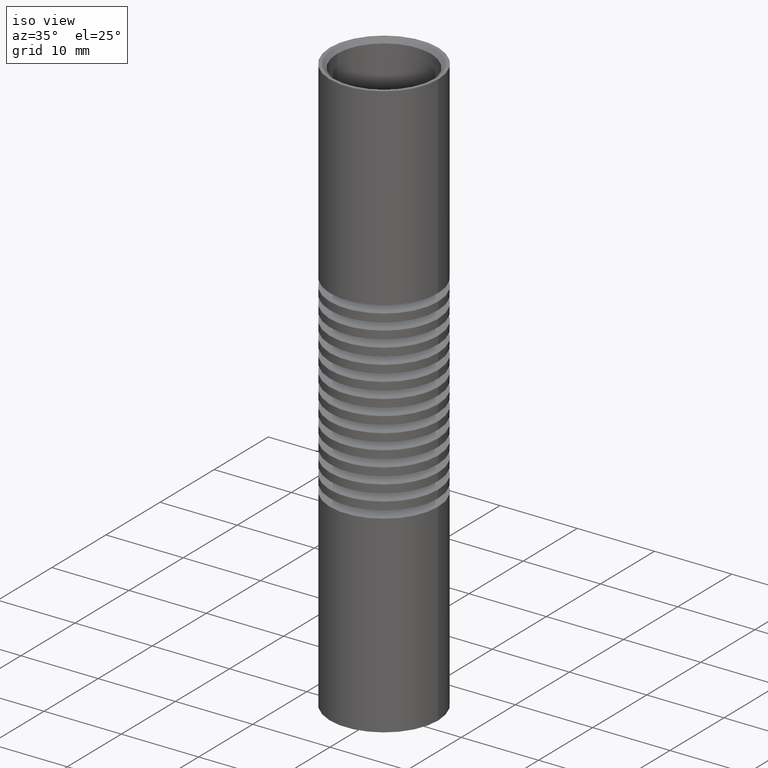
[diagram: clean part render]
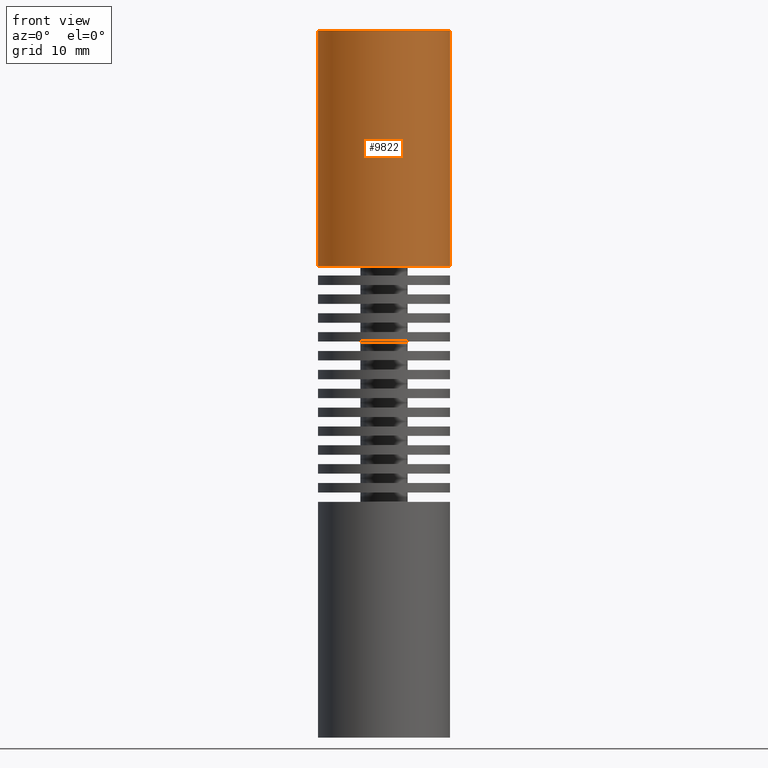
[diagram: tour spotlight — one face highlighted and labeled with its STEP entity id]
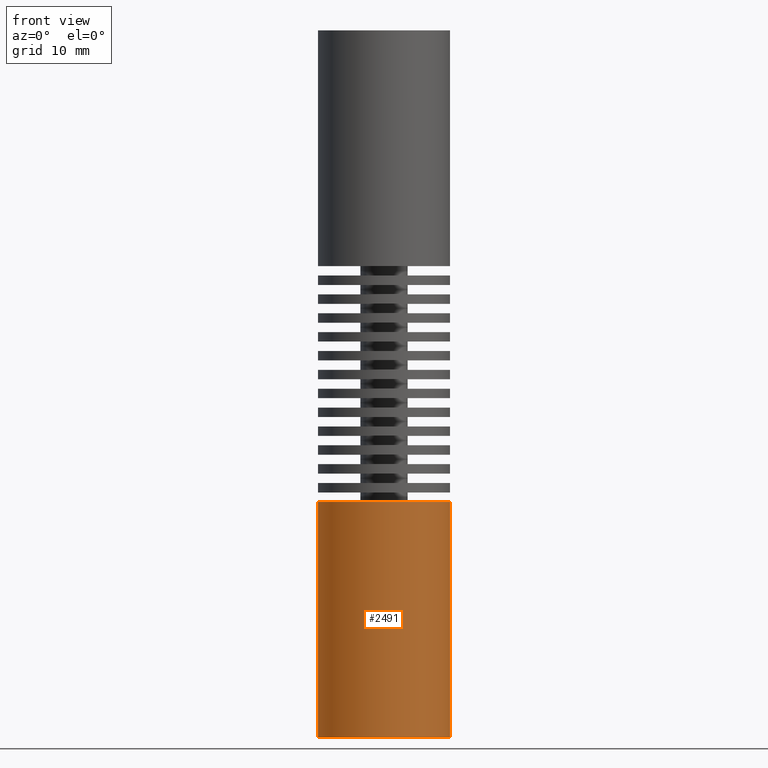
[diagram: tour spotlight — one face highlighted and labeled with its STEP entity id]
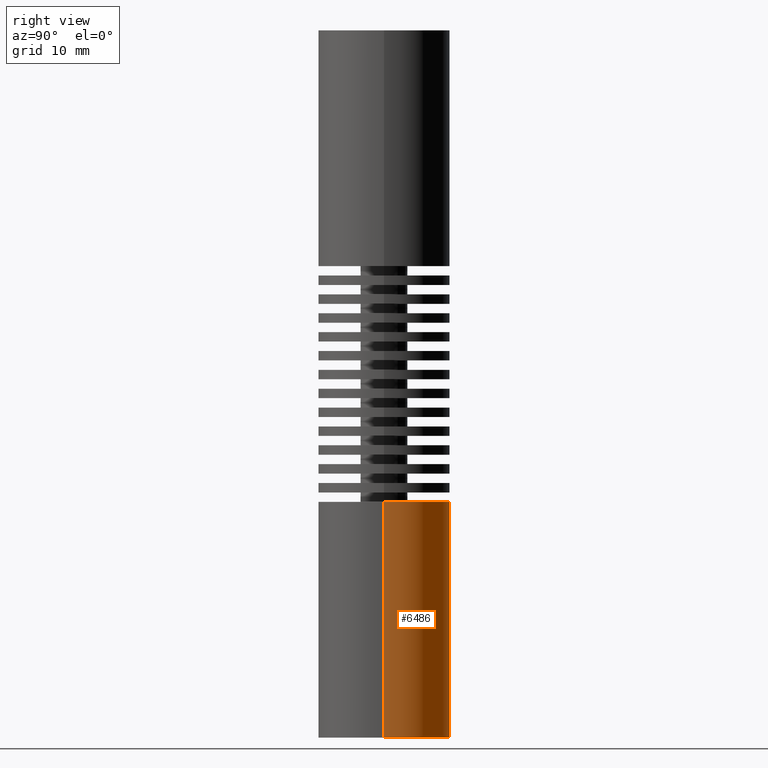
[diagram: tour spotlight — one face highlighted and labeled with its STEP entity id]
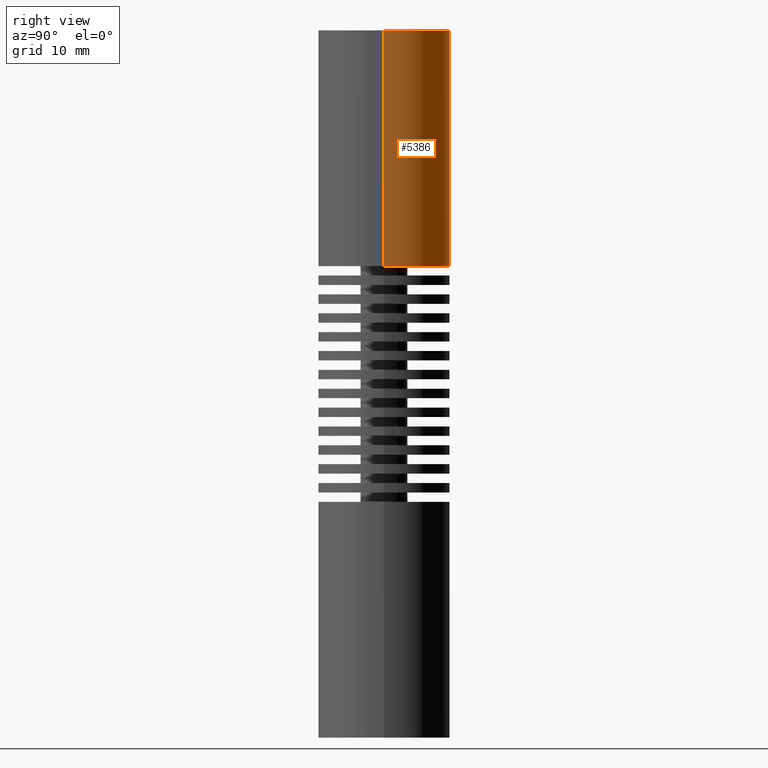
[diagram: tour spotlight — one face highlighted and labeled with its STEP entity id]
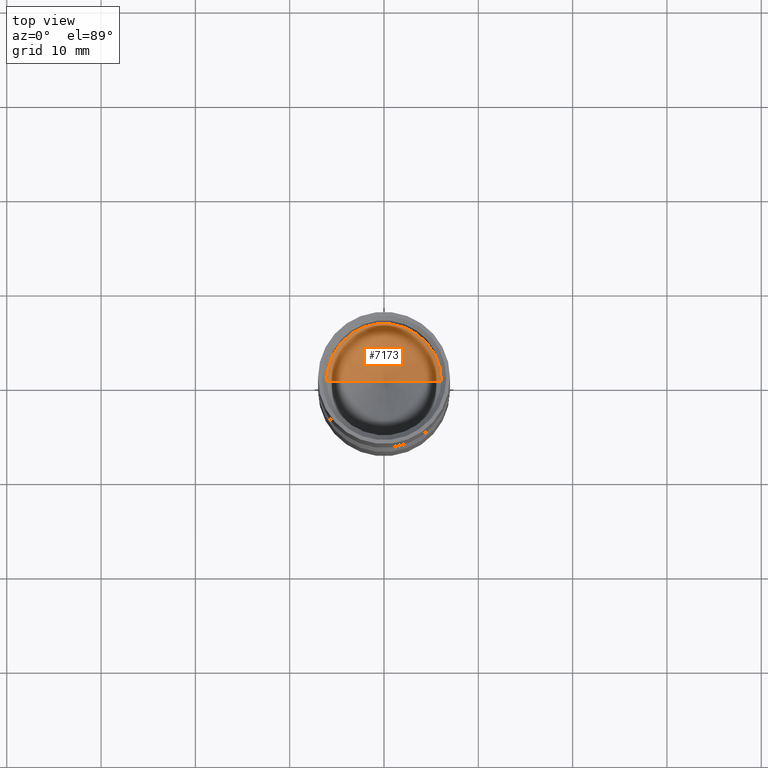
[diagram: tour spotlight — one face highlighted and labeled with its STEP entity id]
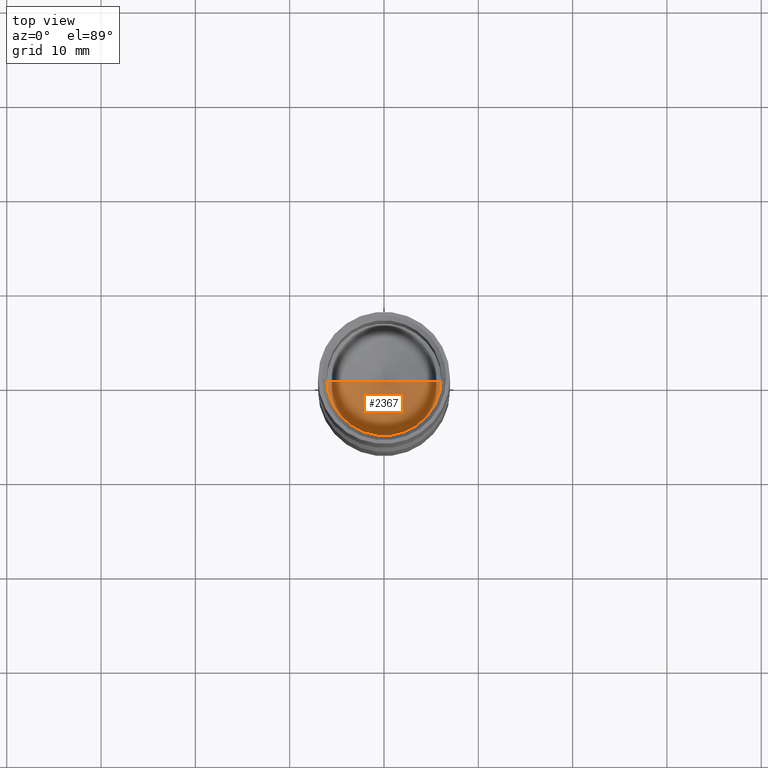
[diagram: tour spotlight — one face highlighted and labeled with its STEP entity id]
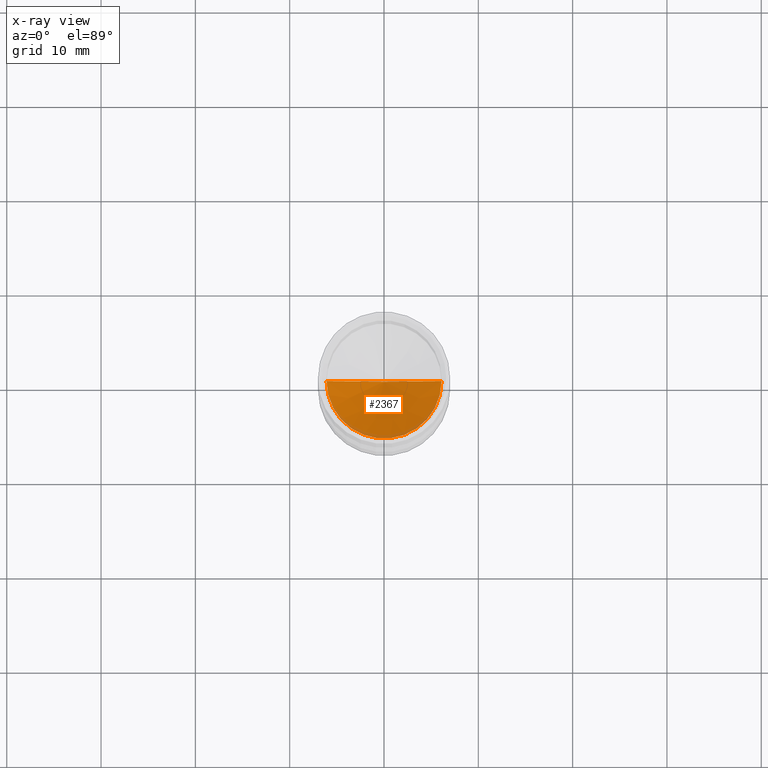
[diagram: x-ray of the same camera — body ghosted, this tour face saturated]
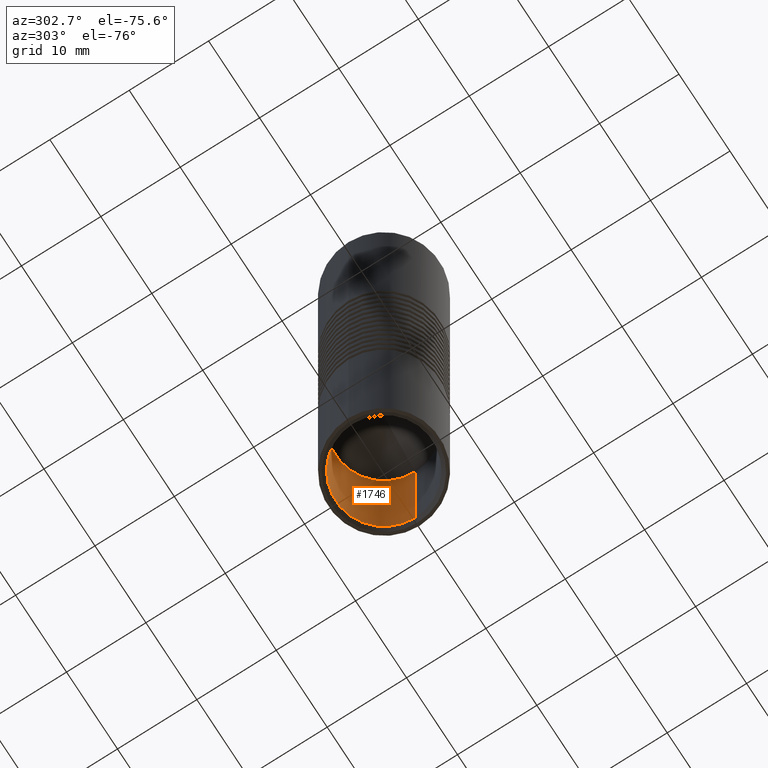
[diagram: tour spotlight — one face highlighted and labeled with its STEP entity id]
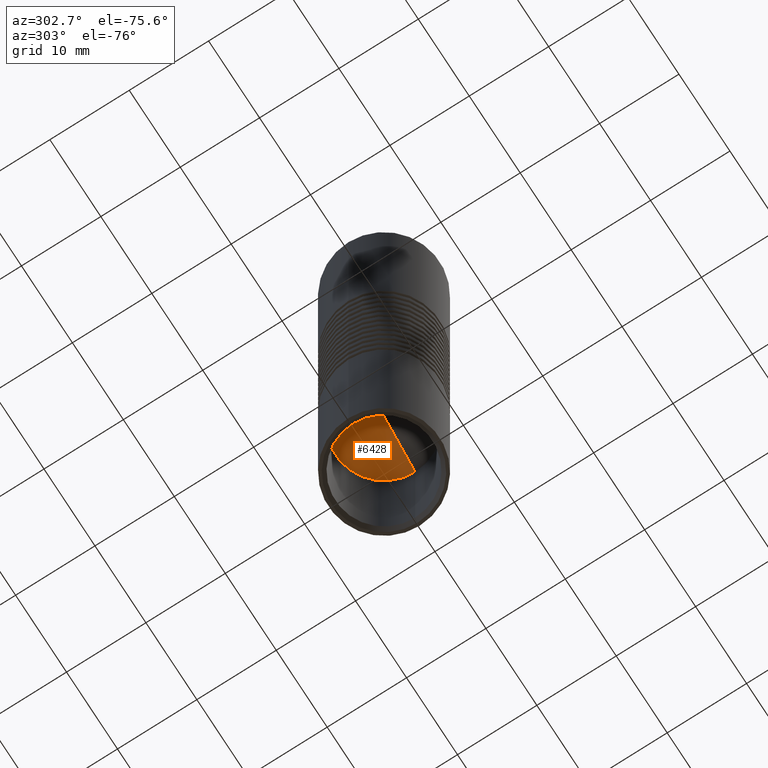
[diagram: tour spotlight — one face highlighted and labeled with its STEP entity id]
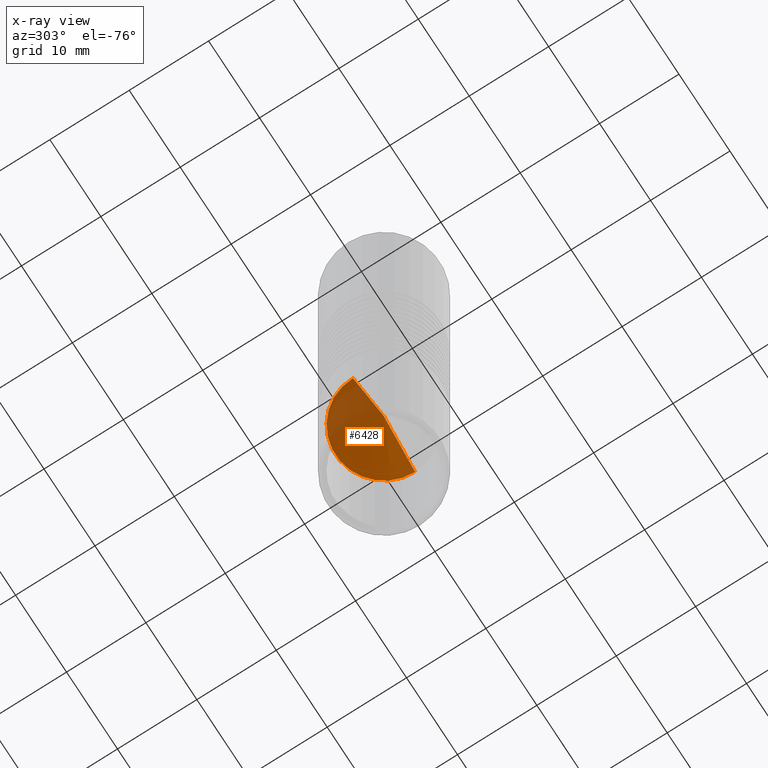
[diagram: x-ray of the same camera — body ghosted, this tour face saturated]
A machine part: a face-by-face anatomy tour. The part has 352 B-rep faces; the first image is the clean iso view, then the 8 largest visible faces are spotlighted one at a time (largest first), each with its STEP entity span.

Face 1 — front view, entity #9822. In plain terms, the highlighted cylindrical surface (partial cylindrical patch) has radius 7 mm, axis along (-0, -0, -1).
Definition (entity closure, byte-faithful):
#524 = ORIENTED_EDGE ( 'NONE', *, *, #12903, .T. ) ;
#924 = DIRECTION ( 'NONE',  ( -0.000000000000000000, -0.000000000000000000, -1.000000000000000000 ) ) ;
#928 = VERTEX_POINT ( 'NONE', #7904 ) ;
#1298 = CIRCLE ( 'NONE', #2208, 7.000000000000004441 ) ;
#1891 = DIRECTION ( 'NONE',  ( -0.000000000000000000, -0.000000000000000000, -1.000000000000000000 ) ) ;
#1991 = LINE ( 'NONE', #4474, #5686 ) ;
#2208 = AXIS2_PLACEMENT_3D ( 'NONE', #11431, #10110, #5629 ) ;
#2353 = VECTOR ( 'NONE', #14525, 1000.000000000000000 ) ;
#2591 = CYLINDRICAL_SURFACE ( 'NONE', #5481, 7.000000000000002665 ) ;
#2824 = EDGE_CURVE ( 'NONE', #12371, #12166, #1991, .T. ) ;
#3162 = CARTESIAN_POINT ( 'NONE',  ( 0.000000000000000000, 0.000000000000000000, 12.49999999999999645 ) ) ;
#3424 = VERTEX_POINT ( 'NONE', #4816 ) ;
#4474 = CARTESIAN_POINT ( 'NONE',  ( 7.000000000000002665, 8.572527594031475162E-16, 0.000000000000000000 ) ) ;
#4816 = CARTESIAN_POINT ( 'NONE',  ( -7.000000000000004441, 0.000000000000000000, 37.50000000000000000 ) ) ;
#5166 = CARTESIAN_POINT ( 'NONE',  ( 7.000000000000001776, 8.572527594031474176E-16, 12.49999999999999645 ) ) ;
#5307 = ORIENTED_EDGE ( 'NONE', *, *, #2824, .F. ) ;
#5364 = DIRECTION ( 'NONE',  ( -1.000000000000000000, 0.000000000000000000, 0.000000000000000000 ) ) ;
#5481 = AXIS2_PLACEMENT_3D ( 'NONE', #9622, #1891, #10886 ) ;
#5629 = DIRECTION ( 'NONE',  ( -1.000000000000000000, 0.000000000000000000, 0.000000000000000000 ) ) ;
#5686 = VECTOR ( 'NONE', #924, 1000.000000000000000 ) ;
#6654 = CARTESIAN_POINT ( 'NONE',  ( -7.000000000000002665, 0.000000000000000000, 0.000000000000000000 ) ) ;
#7576 = EDGE_CURVE ( 'NONE', #12166, #928, #12570, .T. ) ;
#7651 = DIRECTION ( 'NONE',  ( -0.000000000000000000, -0.000000000000000000, -1.000000000000000000 ) ) ;
#7904 = CARTESIAN_POINT ( 'NONE',  ( -7.000000000000001776, 0.000000000000000000, 12.49999999999999645 ) ) ;
#8091 = ORIENTED_EDGE ( 'NONE', *, *, #7576, .F. ) ;
#9438 = EDGE_LOOP ( 'NONE', ( #5307, #524, #13749, #8091 ) ) ;
#9620 = AXIS2_PLACEMENT_3D ( 'NONE', #3162, #7651, #5364 ) ;
#9622 = CARTESIAN_POINT ( 'NONE',  ( 0.000000000000000000, 0.000000000000000000, 0.000000000000000000 ) ) ;
#9822 = ADVANCED_FACE ( 'NONE', ( #13672 ), #2591, .T. ) ;
#10110 = DIRECTION ( 'NONE',  ( -0.000000000000000000, -0.000000000000000000, -1.000000000000000000 ) ) ;
#10886 = DIRECTION ( 'NONE',  ( -1.000000000000000000, 0.000000000000000000, 0.000000000000000000 ) ) ;
#11431 = CARTESIAN_POINT ( 'NONE',  ( 0.000000000000000000, 0.000000000000000000, 37.50000000000000000 ) ) ;
#12166 = VERTEX_POINT ( 'NONE', #5166 ) ;
#12261 = EDGE_CURVE ( 'NONE', #3424, #928, #13445, .T. ) ;
#12371 = VERTEX_POINT ( 'NONE', #12448 ) ;
#12448 = CARTESIAN_POINT ( 'NONE',  ( 7.000000000000004441, 8.572527594031477134E-16, 37.50000000000000000 ) ) ;
#12570 = CIRCLE ( 'NONE', #9620, 7.000000000000001776 ) ;
#12903 = EDGE_CURVE ( 'NONE', #12371, #3424, #1298, .T. ) ;
#13445 = LINE ( 'NONE', #6654, #2353 ) ;
#13672 = FACE_OUTER_BOUND ( 'NONE', #9438, .T. ) ;
#13749 = ORIENTED_EDGE ( 'NONE', *, *, #12261, .T. ) ;
#14525 = DIRECTION ( 'NONE',  ( -0.000000000000000000, -0.000000000000000000, -1.000000000000000000 ) ) ;

Face 2 — front view, entity #2491. In plain terms, the highlighted cylindrical surface (partial cylindrical patch) has radius 7 mm, axis along (-0, -0, 1).
Definition (entity closure, byte-faithful):
#762 = CARTESIAN_POINT ( 'NONE',  ( 0.000000000000000000, 0.000000000000000000, 0.000000000000000000 ) ) ;
#895 = VECTOR ( 'NONE', #5865, 1000.000000000000000 ) ;
#1324 = CIRCLE ( 'NONE', #7206, 7.000000000000001776 ) ;
#1331 = CARTESIAN_POINT ( 'NONE',  ( 7.000000000000002665, -8.572527594031475162E-16, 0.000000000000000000 ) ) ;
#1374 = EDGE_CURVE ( 'NONE', #4584, #2836, #1685, .T. ) ;
#1685 = CIRCLE ( 'NONE', #9107, 7.000000000000004441 ) ;
#1782 = CARTESIAN_POINT ( 'NONE',  ( 0.000000000000000000, 0.000000000000000000, -37.50000000000000000 ) ) ;
#2491 = ADVANCED_FACE ( 'NONE', ( #3052 ), #8496, .T. ) ;
#2836 = VERTEX_POINT ( 'NONE', #8856 ) ;
#3052 = FACE_OUTER_BOUND ( 'NONE', #5665, .T. ) ;
#3515 = VERTEX_POINT ( 'NONE', #7477 ) ;
#3815 = DIRECTION ( 'NONE',  ( -0.000000000000000000, -0.000000000000000000, 1.000000000000000000 ) ) ;
#4495 = EDGE_CURVE ( 'NONE', #2836, #10583, #10752, .T. ) ;
#4584 = VERTEX_POINT ( 'NONE', #13647 ) ;
#5199 = DIRECTION ( 'NONE',  ( -1.000000000000000000, 0.000000000000000000, 0.000000000000000000 ) ) ;
#5427 = AXIS2_PLACEMENT_3D ( 'NONE', #762, #8646, #5199 ) ;
#5542 = DIRECTION ( 'NONE',  ( -1.000000000000000000, 0.000000000000000000, 0.000000000000000000 ) ) ;
#5665 = EDGE_LOOP ( 'NONE', ( #14133, #12554, #6372, #12670 ) ) ;
#5865 = DIRECTION ( 'NONE',  ( -0.000000000000000000, -0.000000000000000000, 1.000000000000000000 ) ) ;
#6216 = DIRECTION ( 'NONE',  ( 0.000000000000000000, 0.000000000000000000, -1.000000000000000000 ) ) ;
#6271 = EDGE_CURVE ( 'NONE', #4584, #3515, #13918, .T. ) ;
#6372 = ORIENTED_EDGE ( 'NONE', *, *, #14025, .T. ) ;
#7206 = AXIS2_PLACEMENT_3D ( 'NONE', #11153, #12280, #5542 ) ;
#7477 = CARTESIAN_POINT ( 'NONE',  ( 7.000000000000001776, -8.572527594031474176E-16, -12.49999999999999645 ) ) ;
#8496 = CYLINDRICAL_SURFACE ( 'NONE', #5427, 7.000000000000002665 ) ;
#8646 = DIRECTION ( 'NONE',  ( -0.000000000000000000, -0.000000000000000000, 1.000000000000000000 ) ) ;
#8856 = CARTESIAN_POINT ( 'NONE',  ( -7.000000000000004441, 0.000000000000000000, -37.50000000000000000 ) ) ;
#9107 = AXIS2_PLACEMENT_3D ( 'NONE', #1782, #6216, #14288 ) ;
#9697 = VECTOR ( 'NONE', #3815, 1000.000000000000000 ) ;
#10583 = VERTEX_POINT ( 'NONE', #14292 ) ;
#10752 = LINE ( 'NONE', #13953, #9697 ) ;
#11153 = CARTESIAN_POINT ( 'NONE',  ( 0.000000000000000000, 0.000000000000000000, -12.49999999999999645 ) ) ;
#12280 = DIRECTION ( 'NONE',  ( 0.000000000000000000, 0.000000000000000000, -1.000000000000000000 ) ) ;
#12554 = ORIENTED_EDGE ( 'NONE', *, *, #6271, .T. ) ;
#12670 = ORIENTED_EDGE ( 'NONE', *, *, #4495, .F. ) ;
#13647 = CARTESIAN_POINT ( 'NONE',  ( 7.000000000000004441, -8.572527594031477134E-16, -37.50000000000000000 ) ) ;
#13918 = LINE ( 'NONE', #1331, #895 ) ;
#13953 = CARTESIAN_POINT ( 'NONE',  ( -7.000000000000002665, 0.000000000000000000, 0.000000000000000000 ) ) ;
#14025 = EDGE_CURVE ( 'NONE', #3515, #10583, #1324, .T. ) ;
#14133 = ORIENTED_EDGE ( 'NONE', *, *, #1374, .F. ) ;
#14288 = DIRECTION ( 'NONE',  ( -1.000000000000000000, 0.000000000000000000, 0.000000000000000000 ) ) ;
#14292 = CARTESIAN_POINT ( 'NONE',  ( -7.000000000000001776, 0.000000000000000000, -12.49999999999999645 ) ) ;

Face 3 — right view, entity #6486. In plain terms, the highlighted cylindrical surface (partial cylindrical patch) has radius 7 mm, axis along (-0, -0, 1).
Definition (entity closure, byte-faithful):
#201 = ORIENTED_EDGE ( 'NONE', *, *, #4495, .T. ) ;
#477 = DIRECTION ( 'NONE',  ( -0.000000000000000000, -0.000000000000000000, 1.000000000000000000 ) ) ;
#895 = VECTOR ( 'NONE', #5865, 1000.000000000000000 ) ;
#1122 = AXIS2_PLACEMENT_3D ( 'NONE', #8756, #4226, #6548 ) ;
#1230 = EDGE_CURVE ( 'NONE', #2836, #4584, #13850, .T. ) ;
#1331 = CARTESIAN_POINT ( 'NONE',  ( 7.000000000000002665, -8.572527594031475162E-16, 0.000000000000000000 ) ) ;
#2836 = VERTEX_POINT ( 'NONE', #8856 ) ;
#3515 = VERTEX_POINT ( 'NONE', #7477 ) ;
#3616 = CARTESIAN_POINT ( 'NONE',  ( 0.000000000000000000, 0.000000000000000000, -37.50000000000000000 ) ) ;
#3739 = ORIENTED_EDGE ( 'NONE', *, *, #8086, .T. ) ;
#3815 = DIRECTION ( 'NONE',  ( -0.000000000000000000, -0.000000000000000000, 1.000000000000000000 ) ) ;
#4066 = DIRECTION ( 'NONE',  ( -1.000000000000000000, 0.000000000000000000, 0.000000000000000000 ) ) ;
#4226 = DIRECTION ( 'NONE',  ( 0.000000000000000000, 0.000000000000000000, -1.000000000000000000 ) ) ;
#4495 = EDGE_CURVE ( 'NONE', #2836, #10583, #10752, .T. ) ;
#4584 = VERTEX_POINT ( 'NONE', #13647 ) ;
#4933 = ORIENTED_EDGE ( 'NONE', *, *, #1230, .F. ) ;
#5865 = DIRECTION ( 'NONE',  ( -0.000000000000000000, -0.000000000000000000, 1.000000000000000000 ) ) ;
#6271 = EDGE_CURVE ( 'NONE', #4584, #3515, #13918, .T. ) ;
#6486 = ADVANCED_FACE ( 'NONE', ( #13015 ), #7236, .T. ) ;
#6548 = DIRECTION ( 'NONE',  ( -1.000000000000000000, 0.000000000000000000, 0.000000000000000000 ) ) ;
#7232 = CARTESIAN_POINT ( 'NONE',  ( 0.000000000000000000, 0.000000000000000000, 0.000000000000000000 ) ) ;
#7236 = CYLINDRICAL_SURFACE ( 'NONE', #11300, 7.000000000000002665 ) ;
#7477 = CARTESIAN_POINT ( 'NONE',  ( 7.000000000000001776, -8.572527594031474176E-16, -12.49999999999999645 ) ) ;
#7782 = ORIENTED_EDGE ( 'NONE', *, *, #6271, .F. ) ;
#8024 = AXIS2_PLACEMENT_3D ( 'NONE', #3616, #8150, #13605 ) ;
#8086 = EDGE_CURVE ( 'NONE', #10583, #3515, #10339, .T. ) ;
#8150 = DIRECTION ( 'NONE',  ( 0.000000000000000000, 0.000000000000000000, -1.000000000000000000 ) ) ;
#8756 = CARTESIAN_POINT ( 'NONE',  ( 0.000000000000000000, 0.000000000000000000, -12.49999999999999645 ) ) ;
#8856 = CARTESIAN_POINT ( 'NONE',  ( -7.000000000000004441, 0.000000000000000000, -37.50000000000000000 ) ) ;
#9697 = VECTOR ( 'NONE', #3815, 1000.000000000000000 ) ;
#10339 = CIRCLE ( 'NONE', #1122, 7.000000000000001776 ) ;
#10583 = VERTEX_POINT ( 'NONE', #14292 ) ;
#10752 = LINE ( 'NONE', #13953, #9697 ) ;
#11300 = AXIS2_PLACEMENT_3D ( 'NONE', #7232, #477, #4066 ) ;
#12363 = EDGE_LOOP ( 'NONE', ( #7782, #4933, #201, #3739 ) ) ;
#13015 = FACE_OUTER_BOUND ( 'NONE', #12363, .T. ) ;
#13605 = DIRECTION ( 'NONE',  ( -1.000000000000000000, 0.000000000000000000, 0.000000000000000000 ) ) ;
#13647 = CARTESIAN_POINT ( 'NONE',  ( 7.000000000000004441, -8.572527594031477134E-16, -37.50000000000000000 ) ) ;
#13850 = CIRCLE ( 'NONE', #8024, 7.000000000000004441 ) ;
#13918 = LINE ( 'NONE', #1331, #895 ) ;
#13953 = CARTESIAN_POINT ( 'NONE',  ( -7.000000000000002665, 0.000000000000000000, 0.000000000000000000 ) ) ;
#14292 = CARTESIAN_POINT ( 'NONE',  ( -7.000000000000001776, 0.000000000000000000, -12.49999999999999645 ) ) ;

Face 4 — right view, entity #5386. In plain terms, the highlighted cylindrical surface (partial cylindrical patch) has radius 7 mm, axis along (-0, -0, -1).
Definition (entity closure, byte-faithful):
#254 = EDGE_CURVE ( 'NONE', #928, #12166, #14216, .T. ) ;
#317 = CARTESIAN_POINT ( 'NONE',  ( 0.000000000000000000, 0.000000000000000000, 0.000000000000000000 ) ) ;
#726 = FACE_OUTER_BOUND ( 'NONE', #3557, .T. ) ;
#924 = DIRECTION ( 'NONE',  ( -0.000000000000000000, -0.000000000000000000, -1.000000000000000000 ) ) ;
#928 = VERTEX_POINT ( 'NONE', #7904 ) ;
#1028 = AXIS2_PLACEMENT_3D ( 'NONE', #7959, #5637, #2352 ) ;
#1353 = AXIS2_PLACEMENT_3D ( 'NONE', #12015, #4196, #8777 ) ;
#1991 = LINE ( 'NONE', #4474, #5686 ) ;
#2352 = DIRECTION ( 'NONE',  ( -1.000000000000000000, 0.000000000000000000, 0.000000000000000000 ) ) ;
#2353 = VECTOR ( 'NONE', #14525, 1000.000000000000000 ) ;
#2606 = DIRECTION ( 'NONE',  ( -0.000000000000000000, -0.000000000000000000, -1.000000000000000000 ) ) ;
#2740 = ORIENTED_EDGE ( 'NONE', *, *, #2824, .T. ) ;
#2824 = EDGE_CURVE ( 'NONE', #12371, #12166, #1991, .T. ) ;
#3424 = VERTEX_POINT ( 'NONE', #4816 ) ;
#3557 = EDGE_LOOP ( 'NONE', ( #5475, #2740, #5876, #4604 ) ) ;
#4196 = DIRECTION ( 'NONE',  ( -0.000000000000000000, -0.000000000000000000, -1.000000000000000000 ) ) ;
#4474 = CARTESIAN_POINT ( 'NONE',  ( 7.000000000000002665, 8.572527594031475162E-16, 0.000000000000000000 ) ) ;
#4604 = ORIENTED_EDGE ( 'NONE', *, *, #12261, .F. ) ;
#4816 = CARTESIAN_POINT ( 'NONE',  ( -7.000000000000004441, 0.000000000000000000, 37.50000000000000000 ) ) ;
#5166 = CARTESIAN_POINT ( 'NONE',  ( 7.000000000000001776, 8.572527594031474176E-16, 12.49999999999999645 ) ) ;
#5386 = ADVANCED_FACE ( 'NONE', ( #726 ), #6373, .T. ) ;
#5475 = ORIENTED_EDGE ( 'NONE', *, *, #13106, .T. ) ;
#5637 = DIRECTION ( 'NONE',  ( -0.000000000000000000, -0.000000000000000000, -1.000000000000000000 ) ) ;
#5686 = VECTOR ( 'NONE', #924, 1000.000000000000000 ) ;
#5876 = ORIENTED_EDGE ( 'NONE', *, *, #254, .F. ) ;
#6373 = CYLINDRICAL_SURFACE ( 'NONE', #10204, 7.000000000000002665 ) ;
#6654 = CARTESIAN_POINT ( 'NONE',  ( -7.000000000000002665, 0.000000000000000000, 0.000000000000000000 ) ) ;
#7904 = CARTESIAN_POINT ( 'NONE',  ( -7.000000000000001776, 0.000000000000000000, 12.49999999999999645 ) ) ;
#7959 = CARTESIAN_POINT ( 'NONE',  ( 0.000000000000000000, 0.000000000000000000, 12.49999999999999645 ) ) ;
#8777 = DIRECTION ( 'NONE',  ( -1.000000000000000000, 0.000000000000000000, 0.000000000000000000 ) ) ;
#10204 = AXIS2_PLACEMENT_3D ( 'NONE', #317, #2606, #10467 ) ;
#10316 = CIRCLE ( 'NONE', #1353, 7.000000000000004441 ) ;
#10467 = DIRECTION ( 'NONE',  ( -1.000000000000000000, 0.000000000000000000, 0.000000000000000000 ) ) ;
#12015 = CARTESIAN_POINT ( 'NONE',  ( 0.000000000000000000, 0.000000000000000000, 37.50000000000000000 ) ) ;
#12166 = VERTEX_POINT ( 'NONE', #5166 ) ;
#12261 = EDGE_CURVE ( 'NONE', #3424, #928, #13445, .T. ) ;
#12371 = VERTEX_POINT ( 'NONE', #12448 ) ;
#12448 = CARTESIAN_POINT ( 'NONE',  ( 7.000000000000004441, 8.572527594031477134E-16, 37.50000000000000000 ) ) ;
#13106 = EDGE_CURVE ( 'NONE', #3424, #12371, #10316, .T. ) ;
#13445 = LINE ( 'NONE', #6654, #2353 ) ;
#14216 = CIRCLE ( 'NONE', #1028, 7.000000000000001776 ) ;
#14525 = DIRECTION ( 'NONE',  ( -0.000000000000000000, -0.000000000000000000, -1.000000000000000000 ) ) ;

Face 5 — top view, entity #7173. In plain terms, the highlighted conical surface has half-angle 59 deg.
Definition (entity closure, byte-faithful):
#1005 = CARTESIAN_POINT ( 'NONE',  ( -6.099999999999994316, 7.470345474798847390E-16, 17.49999999999999645 ) ) ;
#1092 = ORIENTED_EDGE ( 'NONE', *, *, #7170, .F. ) ;
#1095 = CARTESIAN_POINT ( 'NONE',  ( -6.099999999999994316, 7.470345474798849362E-16, 17.49999999999999645 ) ) ;
#1162 = VECTOR ( 'NONE', #8240, 1000.000000000000000 ) ;
#1937 = DIRECTION ( 'NONE',  ( -0.000000000000000000, -0.000000000000000000, 1.000000000000000000 ) ) ;
#2005 = CONICAL_SURFACE ( 'NONE', #11955, 6.099999999999994316, 1.029744258676653645 ) ;
#2046 = CARTESIAN_POINT ( 'NONE',  ( 0.000000000000000000, 0.000000000000000000, 17.49999999999999645 ) ) ;
#2144 = DIRECTION ( 'NONE',  ( -0.8571673007021118895, 1.049727191138618079E-16, 0.5150380749100549327 ) ) ;
#2382 = AXIS2_PLACEMENT_3D ( 'NONE', #10701, #9664, #5189 ) ;
#2410 = LINE ( 'NONE', #11480, #1162 ) ;
#2776 = EDGE_LOOP ( 'NONE', ( #1092, #13744, #12027 ) ) ;
#3224 = DIRECTION ( 'NONE',  ( 1.000000000000000000, 0.000000000000000000, 0.000000000000000000 ) ) ;
#4164 = CIRCLE ( 'NONE', #2382, 6.099999999999994316 ) ;
#5189 = DIRECTION ( 'NONE',  ( 1.000000000000000000, 0.000000000000000000, 0.000000000000000000 ) ) ;
#7170 = EDGE_CURVE ( 'NONE', #8101, #8651, #10625, .T. ) ;
#7173 = ADVANCED_FACE ( 'NONE', ( #7292 ), #2005, .F. ) ;
#7292 = FACE_OUTER_BOUND ( 'NONE', #2776, .T. ) ;
#7821 = VECTOR ( 'NONE', #2144, 1000.000000000000000 ) ;
#8101 = VERTEX_POINT ( 'NONE', #13271 ) ;
#8240 = DIRECTION ( 'NONE',  ( 0.8571673007021118895, 0.000000000000000000, 0.5150380749100549327 ) ) ;
#8651 = VERTEX_POINT ( 'NONE', #1095 ) ;
#8738 = EDGE_CURVE ( 'NONE', #8101, #10608, #2410, .T. ) ;
#9664 = DIRECTION ( 'NONE',  ( -0.000000000000000000, -0.000000000000000000, 1.000000000000000000 ) ) ;
#9678 = EDGE_CURVE ( 'NONE', #10608, #8651, #4164, .T. ) ;
#10608 = VERTEX_POINT ( 'NONE', #10941 ) ;
#10625 = LINE ( 'NONE', #1005, #7821 ) ;
#10701 = CARTESIAN_POINT ( 'NONE',  ( 0.000000000000000000, 0.000000000000000000, 17.49999999999999645 ) ) ;
#10941 = CARTESIAN_POINT ( 'NONE',  ( 6.099999999999994316, 0.000000000000000000, 17.49999999999999645 ) ) ;
#11480 = CARTESIAN_POINT ( 'NONE',  ( 6.099999999999994316, 0.000000000000000000, 17.49999999999999645 ) ) ;
#11955 = AXIS2_PLACEMENT_3D ( 'NONE', #2046, #1937, #3224 ) ;
#12027 = ORIENTED_EDGE ( 'NONE', *, *, #9678, .T. ) ;
#13271 = CARTESIAN_POINT ( 'NONE',  ( -5.779600511864283608E-15, 0.000000000000000000, 13.83475022393188070 ) ) ;
#13744 = ORIENTED_EDGE ( 'NONE', *, *, #8738, .T. ) ;

Face 6 — top view, entity #2367. An x-ray twin of the same camera follows (body ghosted, this face saturated) — the face is partly hidden behind the body. In plain terms, the highlighted conical surface has half-angle 59 deg.
Definition (entity closure, byte-faithful):
#300 = AXIS2_PLACEMENT_3D ( 'NONE', #1659, #9489, #10560 ) ;
#1005 = CARTESIAN_POINT ( 'NONE',  ( -6.099999999999994316, 7.470345474798847390E-16, 17.49999999999999645 ) ) ;
#1095 = CARTESIAN_POINT ( 'NONE',  ( -6.099999999999994316, 7.470345474798849362E-16, 17.49999999999999645 ) ) ;
#1162 = VECTOR ( 'NONE', #8240, 1000.000000000000000 ) ;
#1659 = CARTESIAN_POINT ( 'NONE',  ( 0.000000000000000000, 0.000000000000000000, 17.49999999999999645 ) ) ;
#1845 = EDGE_LOOP ( 'NONE', ( #14490, #6071, #14421 ) ) ;
#2144 = DIRECTION ( 'NONE',  ( -0.8571673007021118895, 1.049727191138618079E-16, 0.5150380749100549327 ) ) ;
#2367 = ADVANCED_FACE ( 'NONE', ( #13555 ), #10846, .F. ) ;
#2410 = LINE ( 'NONE', #11480, #1162 ) ;
#5831 = DIRECTION ( 'NONE',  ( -0.000000000000000000, -0.000000000000000000, 1.000000000000000000 ) ) ;
#6071 = ORIENTED_EDGE ( 'NONE', *, *, #7170, .T. ) ;
#7024 = AXIS2_PLACEMENT_3D ( 'NONE', #11239, #5831, #12574 ) ;
#7170 = EDGE_CURVE ( 'NONE', #8101, #8651, #10625, .T. ) ;
#7821 = VECTOR ( 'NONE', #2144, 1000.000000000000000 ) ;
#8101 = VERTEX_POINT ( 'NONE', #13271 ) ;
#8240 = DIRECTION ( 'NONE',  ( 0.8571673007021118895, 0.000000000000000000, 0.5150380749100549327 ) ) ;
#8651 = VERTEX_POINT ( 'NONE', #1095 ) ;
#8738 = EDGE_CURVE ( 'NONE', #8101, #10608, #2410, .T. ) ;
#9489 = DIRECTION ( 'NONE',  ( -0.000000000000000000, -0.000000000000000000, 1.000000000000000000 ) ) ;
#9786 = CIRCLE ( 'NONE', #7024, 6.099999999999994316 ) ;
#10560 = DIRECTION ( 'NONE',  ( 1.000000000000000000, 0.000000000000000000, 0.000000000000000000 ) ) ;
#10608 = VERTEX_POINT ( 'NONE', #10941 ) ;
#10625 = LINE ( 'NONE', #1005, #7821 ) ;
#10846 = CONICAL_SURFACE ( 'NONE', #300, 6.099999999999994316, 1.029744258676653645 ) ;
#10941 = CARTESIAN_POINT ( 'NONE',  ( 6.099999999999994316, 0.000000000000000000, 17.49999999999999645 ) ) ;
#11239 = CARTESIAN_POINT ( 'NONE',  ( 0.000000000000000000, 0.000000000000000000, 17.49999999999999645 ) ) ;
#11480 = CARTESIAN_POINT ( 'NONE',  ( 6.099999999999994316, 0.000000000000000000, 17.49999999999999645 ) ) ;
#12574 = DIRECTION ( 'NONE',  ( 1.000000000000000000, 0.000000000000000000, 0.000000000000000000 ) ) ;
#12859 = EDGE_CURVE ( 'NONE', #8651, #10608, #9786, .T. ) ;
#13271 = CARTESIAN_POINT ( 'NONE',  ( -5.779600511864283608E-15, 0.000000000000000000, 13.83475022393188070 ) ) ;
#13555 = FACE_OUTER_BOUND ( 'NONE', #1845, .T. ) ;
#14421 = ORIENTED_EDGE ( 'NONE', *, *, #12859, .T. ) ;
#14490 = ORIENTED_EDGE ( 'NONE', *, *, #8738, .F. ) ;

Face 7 — auxiliary view, entity #1746. In plain terms, the highlighted cylindrical surface (partial cylindrical patch) has radius 6.1 mm, axis along (0, 0, -1).
Definition (entity closure, byte-faithful):
#1147 = CYLINDRICAL_SURFACE ( 'NONE', #2030, 6.099999999999996092 ) ;
#1584 = LINE ( 'NONE', #9417, #2128 ) ;
#1746 = ADVANCED_FACE ( 'NONE', ( #2925 ), #1147, .F. ) ;
#1783 = CIRCLE ( 'NONE', #3084, 6.099999999999994316 ) ;
#2030 = AXIS2_PLACEMENT_3D ( 'NONE', #14470, #13328, #14607 ) ;
#2095 = AXIS2_PLACEMENT_3D ( 'NONE', #6332, #2758, #10621 ) ;
#2128 = VECTOR ( 'NONE', #10531, 1000.000000000000000 ) ;
#2412 = CARTESIAN_POINT ( 'NONE',  ( 6.099999999999996092, 0.000000000000000000, -37.50000000000000000 ) ) ;
#2758 = DIRECTION ( 'NONE',  ( -0.000000000000000000, -0.000000000000000000, -1.000000000000000000 ) ) ;
#2925 = FACE_OUTER_BOUND ( 'NONE', #11292, .T. ) ;
#2940 = EDGE_CURVE ( 'NONE', #6212, #8279, #9047, .T. ) ;
#3084 = AXIS2_PLACEMENT_3D ( 'NONE', #7490, #14169, #11942 ) ;
#3945 = CIRCLE ( 'NONE', #2095, 6.099999999999996092 ) ;
#3976 = CARTESIAN_POINT ( 'NONE',  ( -6.099999999999994316, -7.470345474798847390E-16, -17.49999999999999645 ) ) ;
#4139 = EDGE_CURVE ( 'NONE', #6212, #7934, #1783, .T. ) ;
#4680 = CARTESIAN_POINT ( 'NONE',  ( 6.099999999999994316, 0.000000000000000000, -17.49999999999999645 ) ) ;
#5793 = CARTESIAN_POINT ( 'NONE',  ( 6.099999999999996092, 0.000000000000000000, -37.00000000000000000 ) ) ;
#5986 = EDGE_CURVE ( 'NONE', #7934, #6735, #1584, .T. ) ;
#6212 = VERTEX_POINT ( 'NONE', #4680 ) ;
#6332 = CARTESIAN_POINT ( 'NONE',  ( 0.000000000000000000, 0.000000000000000000, -37.00000000000000000 ) ) ;
#6735 = VERTEX_POINT ( 'NONE', #6740 ) ;
#6740 = CARTESIAN_POINT ( 'NONE',  ( -6.099999999999996092, -7.470345474798850348E-16, -37.00000000000000000 ) ) ;
#7490 = CARTESIAN_POINT ( 'NONE',  ( 0.000000000000000000, 0.000000000000000000, -17.49999999999999645 ) ) ;
#7934 = VERTEX_POINT ( 'NONE', #3976 ) ;
#8063 = DIRECTION ( 'NONE',  ( 0.000000000000000000, 0.000000000000000000, -1.000000000000000000 ) ) ;
#8279 = VERTEX_POINT ( 'NONE', #5793 ) ;
#9047 = LINE ( 'NONE', #2412, #14130 ) ;
#9125 = ORIENTED_EDGE ( 'NONE', *, *, #11334, .T. ) ;
#9417 = CARTESIAN_POINT ( 'NONE',  ( -6.099999999999996092, -7.470345474798850348E-16, -37.50000000000000000 ) ) ;
#10510 = ORIENTED_EDGE ( 'NONE', *, *, #2940, .F. ) ;
#10531 = DIRECTION ( 'NONE',  ( 0.000000000000000000, 0.000000000000000000, -1.000000000000000000 ) ) ;
#10621 = DIRECTION ( 'NONE',  ( 1.000000000000000000, 0.000000000000000000, 0.000000000000000000 ) ) ;
#11292 = EDGE_LOOP ( 'NONE', ( #13443, #13750, #9125, #10510 ) ) ;
#11334 = EDGE_CURVE ( 'NONE', #6735, #8279, #3945, .T. ) ;
#11942 = DIRECTION ( 'NONE',  ( 1.000000000000000000, 0.000000000000000000, 0.000000000000000000 ) ) ;
#13328 = DIRECTION ( 'NONE',  ( 0.000000000000000000, 0.000000000000000000, -1.000000000000000000 ) ) ;
#13443 = ORIENTED_EDGE ( 'NONE', *, *, #4139, .T. ) ;
#13750 = ORIENTED_EDGE ( 'NONE', *, *, #5986, .T. ) ;
#14130 = VECTOR ( 'NONE', #8063, 1000.000000000000000 ) ;
#14169 = DIRECTION ( 'NONE',  ( -0.000000000000000000, -0.000000000000000000, 1.000000000000000000 ) ) ;
#14470 = CARTESIAN_POINT ( 'NONE',  ( 0.000000000000000000, 0.000000000000000000, -37.50000000000000000 ) ) ;
#14607 = DIRECTION ( 'NONE',  ( 1.000000000000000000, 0.000000000000000000, 0.000000000000000000 ) ) ;

Face 8 — auxiliary view, entity #6428. An x-ray twin of the same camera follows (body ghosted, this face saturated) — the face is partly hidden behind the body. In plain terms, the highlighted conical surface has half-angle 59 deg.
Definition (entity closure, byte-faithful):
#544 = VECTOR ( 'NONE', #4781, 1000.000000000000000 ) ;
#1755 = FACE_OUTER_BOUND ( 'NONE', #6775, .T. ) ;
#1783 = CIRCLE ( 'NONE', #3084, 6.099999999999994316 ) ;
#2727 = AXIS2_PLACEMENT_3D ( 'NONE', #4864, #7183, #9349 ) ;
#3084 = AXIS2_PLACEMENT_3D ( 'NONE', #7490, #14169, #11942 ) ;
#3600 = ORIENTED_EDGE ( 'NONE', *, *, #4139, .F. ) ;
#3976 = CARTESIAN_POINT ( 'NONE',  ( -6.099999999999994316, -7.470345474798847390E-16, -17.49999999999999645 ) ) ;
#4139 = EDGE_CURVE ( 'NONE', #6212, #7934, #1783, .T. ) ;
#4605 = VECTOR ( 'NONE', #14174, 1000.000000000000000 ) ;
#4680 = CARTESIAN_POINT ( 'NONE',  ( 6.099999999999994316, 0.000000000000000000, -17.49999999999999645 ) ) ;
#4781 = DIRECTION ( 'NONE',  ( 0.8571673007021118895, 0.000000000000000000, -0.5150380749100549327 ) ) ;
#4864 = CARTESIAN_POINT ( 'NONE',  ( 0.000000000000000000, 0.000000000000000000, -17.49999999999999645 ) ) ;
#5180 = EDGE_CURVE ( 'NONE', #12999, #7934, #10417, .T. ) ;
#5670 = ORIENTED_EDGE ( 'NONE', *, *, #5180, .T. ) ;
#5715 = EDGE_CURVE ( 'NONE', #12999, #6212, #9885, .T. ) ;
#6212 = VERTEX_POINT ( 'NONE', #4680 ) ;
#6213 = CARTESIAN_POINT ( 'NONE',  ( -5.779600511864283608E-15, 0.000000000000000000, -13.83475022393188070 ) ) ;
#6428 = ADVANCED_FACE ( 'NONE', ( #1755 ), #9177, .F. ) ;
#6635 = CARTESIAN_POINT ( 'NONE',  ( 6.099999999999994316, 0.000000000000000000, -17.49999999999999645 ) ) ;
#6775 = EDGE_LOOP ( 'NONE', ( #13191, #5670, #3600 ) ) ;
#7183 = DIRECTION ( 'NONE',  ( 0.000000000000000000, 0.000000000000000000, -1.000000000000000000 ) ) ;
#7490 = CARTESIAN_POINT ( 'NONE',  ( 0.000000000000000000, 0.000000000000000000, -17.49999999999999645 ) ) ;
#7934 = VERTEX_POINT ( 'NONE', #3976 ) ;
#9177 = CONICAL_SURFACE ( 'NONE', #2727, 6.099999999999994316, 1.029744258676653645 ) ;
#9349 = DIRECTION ( 'NONE',  ( 1.000000000000000000, 0.000000000000000000, 0.000000000000000000 ) ) ;
#9885 = LINE ( 'NONE', #6635, #544 ) ;
#10417 = LINE ( 'NONE', #10678, #4605 ) ;
#10678 = CARTESIAN_POINT ( 'NONE',  ( -6.099999999999994316, -7.470345474798847390E-16, -17.49999999999999645 ) ) ;
#11942 = DIRECTION ( 'NONE',  ( 1.000000000000000000, 0.000000000000000000, 0.000000000000000000 ) ) ;
#12999 = VERTEX_POINT ( 'NONE', #6213 ) ;
#13191 = ORIENTED_EDGE ( 'NONE', *, *, #5715, .F. ) ;
#14169 = DIRECTION ( 'NONE',  ( -0.000000000000000000, -0.000000000000000000, 1.000000000000000000 ) ) ;
#14174 = DIRECTION ( 'NONE',  ( -0.8571673007021118895, -1.049727191138618079E-16, -0.5150380749100549327 ) ) ;